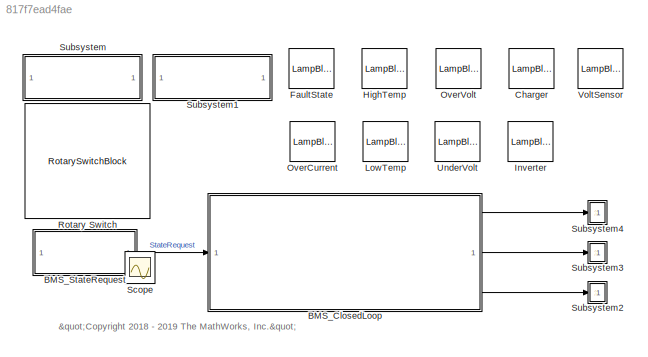
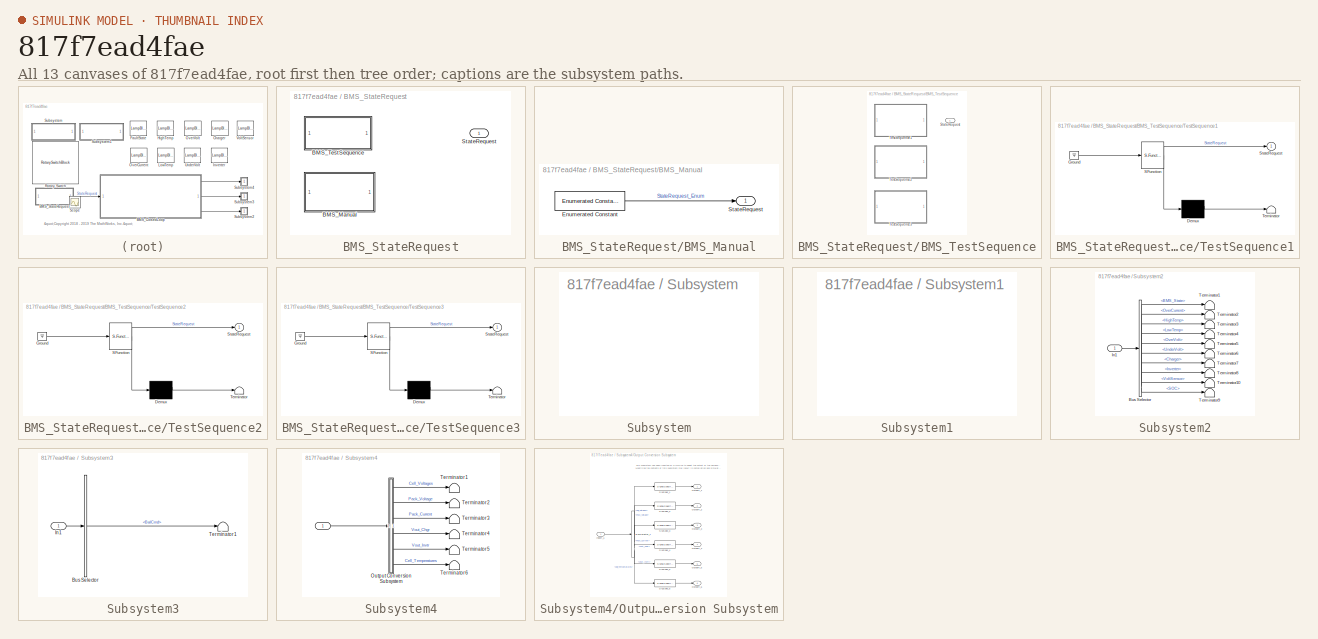
[diagram: thumbnail index - all 13 canvases of the model, root first then tree order]
MODEL slx_817f7ead4fae
KIND model
BLOCK [ModelReference] BMS_ClosedLoop
  ModelNameDialog = BMS_ClosedLoop
  ModelReferenceVersion = 4.1
BLOCK [SubSystem] BMS_StateRequest
  LabelModeActiveChoice = TestSequenceVariant
  Variant = on
  VariantControlMode = label
BLOCK [SubSystem] BMS_StateRequest/BMS_Manual
  VariantControl = ManualVariant
BLOCK [Reference] BMS_StateRequest/BMS_Manual/Enumerated Constant  REF=simulink/Sources/Enumerated
Constant
  SourceBlock = simulink/Sources/Enumerated\nConstant
  SourceType = Enumerated Constant
BLOCK [Outport] BMS_StateRequest/BMS_Manual/StateRequest
  VectorParamsAs1DForOutWhenUnconnected = off
BLOCK [SubSystem] BMS_StateRequest/BMS_TestSequence
  Variant = on
  VariantControl = TestSequenceVariant
BLOCK [Outport] BMS_StateRequest/BMS_TestSequence/ StateRequest
  VectorParamsAs1DForOutWhenUnconnected = off
BLOCK [SubSystem] BMS_StateRequest/BMS_TestSequence/TestSequence1
  ErrorFcn = Stateflow.Translate.translate
  PermitHierarchicalResolution = ExplicitOnly
  SFBlockType = Test Sequence
  TreatAsAtomicUnit = on
  VariantControl = TestCase == 1
BLOCK [Demux] BMS_StateRequest/BMS_TestSequence/TestSequence1/ Demux 
  Outputs = 1
BLOCK [Ground] BMS_StateRequest/BMS_TestSequence/TestSequence1/ Ground 
BLOCK [S-Function] BMS_StateRequest/BMS_TestSequence/TestSequence1/ SFunction 
  EnableBusSupport = off
  FunctionName = sf_sfun
  PortCounts = [1 2]
  SFcnIsStateOwnerBlock = off
  SFunctionDeploymentMode = off
  Tag = Stateflow S-Function 2
BLOCK [Terminator] BMS_StateRequest/BMS_TestSequence/TestSequence1/ Terminator 
BLOCK [Outport] BMS_StateRequest/BMS_TestSequence/TestSequence1/StateRequest
  VectorParamsAs1DForOutWhenUnconnected = off
BLOCK [SubSystem] BMS_StateRequest/BMS_TestSequence/TestSequence2
  ErrorFcn = Stateflow.Translate.translate
  PermitHierarchicalResolution = ExplicitOnly
  SFBlockType = Test Sequence
  TreatAsAtomicUnit = on
  VariantControl = TestCase == 2
BLOCK [Demux] BMS_StateRequest/BMS_TestSequence/TestSequence2/ Demux 
  Outputs = 1
BLOCK [Ground] BMS_StateRequest/BMS_TestSequence/TestSequence2/ Ground 
BLOCK [S-Function] BMS_StateRequest/BMS_TestSequence/TestSequence2/ SFunction 
  EnableBusSupport = off
  FunctionName = sf_sfun
  PortCounts = [1 2]
  SFcnIsStateOwnerBlock = off
  SFunctionDeploymentMode = off
  Tag = Stateflow S-Function 3
BLOCK [Terminator] BMS_StateRequest/BMS_TestSequence/TestSequence2/ Terminator 
BLOCK [Outport] BMS_StateRequest/BMS_TestSequence/TestSequence2/StateRequest
  VectorParamsAs1DForOutWhenUnconnected = off
BLOCK [SubSystem] BMS_StateRequest/BMS_TestSequence/TestSequence3
  ErrorFcn = Stateflow.Translate.translate
  PermitHierarchicalResolution = ExplicitOnly
  SFBlockType = Test Sequence
  TreatAsAtomicUnit = on
  VariantControl = TestCase == 3
BLOCK [Demux] BMS_StateRequest/BMS_TestSequence/TestSequence3/ Demux 
  Outputs = 1
BLOCK [Ground] BMS_StateRequest/BMS_TestSequence/TestSequence3/ Ground 
BLOCK [S-Function] BMS_StateRequest/BMS_TestSequence/TestSequence3/ SFunction 
  EnableBusSupport = off
  FunctionName = sf_sfun
  PortCounts = [1 2]
  SFcnIsStateOwnerBlock = off
  SFunctionDeploymentMode = off
  Tag = Stateflow S-Function 4
BLOCK [Terminator] BMS_StateRequest/BMS_TestSequence/TestSequence3/ Terminator 
BLOCK [Outport] BMS_StateRequest/BMS_TestSequence/TestSequence3/StateRequest
  VectorParamsAs1DForOutWhenUnconnected = off
BLOCK [Outport] BMS_StateRequest/StateRequest
  OutDataTypeStr = Enum: SRE
  VectorParamsAs1DForOutWhenUnconnected = off
BLOCK [LampBlock] Charger
BLOCK [LampBlock] FaultState
BLOCK [LampBlock] HighTemp
BLOCK [LampBlock] Inverter
BLOCK [LampBlock] LowTemp
BLOCK [LampBlock] OverCurrent
BLOCK [LampBlock] OverVolt
BLOCK [RotarySwitchBlock] Rotary Switch
  LabelPosition = Hide
BLOCK [Scope] Scope
  Floating = off
  IOType = viewer
  NumInputPorts = 1
  ScopeSpecificationString = Simulink.scopes.TimeScopeBlockCfg('CurrentConfiguration', extmgr.ConfigurationSet(extmgr.Configuration('Core','General UI',true),extmgr.Configuration('Core','Source UI',true),extmgr.Configuration('Sources','WiredSimulink',true),extmgr.Configuration('Visuals','Time Domain',true,'SerializedDisplays',{struct('MinYLimReal','3.78915','MaxYLimReal','4.25332','YLabelReal','','MinYLimMag','3.78915','MaxYL...<+5038ch>
BLOCK [SubSystem] Subsystem
BLOCK [SubSystem] Subsystem1
  OpenFcn = set_param([gcs '/BMS_StateRequest'],'OverrideUsingVariant','ManualVariant');
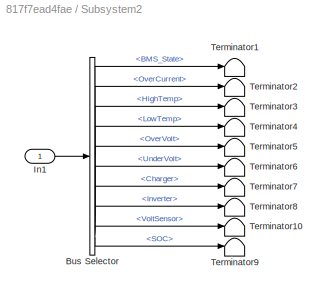
BLOCK [SubSystem] Subsystem2
  ShowPortLabels = none
BLOCK [BusSelector] Subsystem2/Bus Selector
  OutputSignals = BMS_State,Faults.OverCurrent,Faults.HighTemp,Faults.LowTemp,Faults.OverVolt,Faults.UnderVolt,Faults.Charger,Faults.Inverter,Faults.VoltSensor,SOC
BLOCK [Inport] Subsystem2/In1
BLOCK [Terminator] Subsystem2/Terminator1
BLOCK [Terminator] Subsystem2/Terminator10
BLOCK [Terminator] Subsystem2/Terminator2
BLOCK [Terminator] Subsystem2/Terminator3
BLOCK [Terminator] Subsystem2/Terminator4
BLOCK [Terminator] Subsystem2/Terminator5
BLOCK [Terminator] Subsystem2/Terminator6
BLOCK [Terminator] Subsystem2/Terminator7
BLOCK [Terminator] Subsystem2/Terminator8
BLOCK [Terminator] Subsystem2/Terminator9
BLOCK [SubSystem] Subsystem3
  ShowPortLabels = none
BLOCK [BusSelector] Subsystem3/Bus Selector
  OutputSignals = BalCmd
BLOCK [Inport] Subsystem3/In1
BLOCK [Terminator] Subsystem3/Terminator1
BLOCK [SubSystem] Subsystem4
BLOCK [Inport] Subsystem4/ 
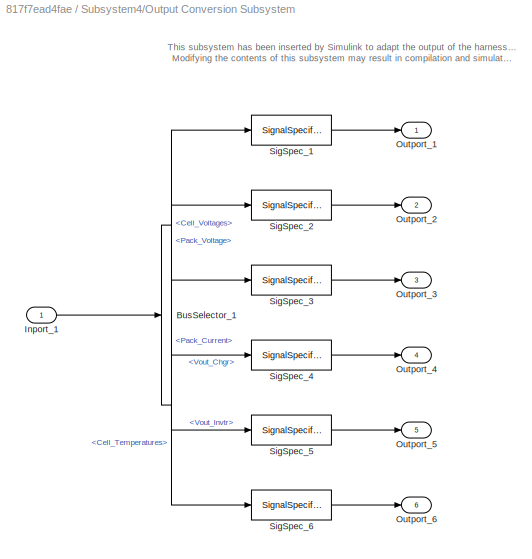
BLOCK [SubSystem] Subsystem4/Output Conversion Subsystem
  AttributesFormatString = %<Description>
  Description = Signal spec.\nand routing
  PermitHierarchicalResolution = ExplicitOnly
  Tag = __SLT_OCS__
  UserDataPersistent = on
BLOCK [BusSelector] Subsystem4/Output Conversion Subsystem/BusSelector_1
  OutputSignals = Cell_Voltages,Pack_Voltage,Pack_Current,Vout_Chgr,Vout_Invtr,Cell_Temperatures
BLOCK [Inport] Subsystem4/Output Conversion Subsystem/Inport_1
BLOCK [Outport] Subsystem4/Output Conversion Subsystem/Outport_1
  VectorParamsAs1DForOutWhenUnconnected = off
BLOCK [Outport] Subsystem4/Output Conversion Subsystem/Outport_2
  Port = 2
  VectorParamsAs1DForOutWhenUnconnected = off
BLOCK [Outport] Subsystem4/Output Conversion Subsystem/Outport_3
  Port = 3
  VectorParamsAs1DForOutWhenUnconnected = off
BLOCK [Outport] Subsystem4/Output Conversion Subsystem/Outport_4
  Port = 4
  VectorParamsAs1DForOutWhenUnconnected = off
BLOCK [Outport] Subsystem4/Output Conversion Subsystem/Outport_5
  Port = 5
  VectorParamsAs1DForOutWhenUnconnected = off
BLOCK [Outport] Subsystem4/Output Conversion Subsystem/Outport_6
  Port = 6
  VectorParamsAs1DForOutWhenUnconnected = off
BLOCK [SignalSpecification] Subsystem4/Output Conversion Subsystem/SigSpec_1
  Dimensions = [Ns_Module*NumModules]
  OutDataTypeStr = single
  SampleTime = 0.1
  SignalType = real
  VarSizeSig = No
BLOCK [SignalSpecification] Subsystem4/Output Conversion Subsystem/SigSpec_2
  Dimensions = [1]
  OutDataTypeStr = single
  SampleTime = 0.1
  SignalType = real
  VarSizeSig = No
BLOCK [SignalSpecification] Subsystem4/Output Conversion Subsystem/SigSpec_3
  Dimensions = [1]
  OutDataTypeStr = single
  SampleTime = 0.1
  SignalType = real
  VarSizeSig = No
BLOCK [SignalSpecification] Subsystem4/Output Conversion Subsystem/SigSpec_4
  Dimensions = [1]
  OutDataTypeStr = single
  SampleTime = 0.1
  SignalType = real
  VarSizeSig = No
BLOCK [SignalSpecification] Subsystem4/Output Conversion Subsystem/SigSpec_5
  Dimensions = [1]
  OutDataTypeStr = single
  SampleTime = 0.1
  SignalType = real
  VarSizeSig = No
BLOCK [SignalSpecification] Subsystem4/Output Conversion Subsystem/SigSpec_6
  Dimensions = [Ns_Module*NumModules]
  OutDataTypeStr = single
  SampleTime = 0.1
  SignalType = real
  VarSizeSig = No
BLOCK [Terminator] Subsystem4/Terminator1
BLOCK [Terminator] Subsystem4/Terminator2
BLOCK [Terminator] Subsystem4/Terminator3
BLOCK [Terminator] Subsystem4/Terminator4
BLOCK [Terminator] Subsystem4/Terminator5
BLOCK [Terminator] Subsystem4/Terminator6
BLOCK [LampBlock] UnderVolt
BLOCK [LampBlock] VoltSensor
ANNOTATION (root): "<copyright redacted>
ANNOTATION Subsystem4/Output Conversion Subsystem: This subsystem has been inserted by Simulink to adapt the output of the harnessed component to the interface required by the sink blocks. Modifying the contents of this subsystem may result in compilation and simulation failure.
LINE BMS_ClosedLoop:1 -> Subsystem4:1
LINE BMS_ClosedLoop:2 -> Subsystem3:1
LINE BMS_ClosedLoop:3 -> Subsystem2:1
LINE BMS_StateRequest/BMS_Manual/Enumerated Constant:1 -> BMS_StateRequest/BMS_Manual/StateRequest:1
LINE BMS_StateRequest:1 -> BMS_ClosedLoop:1
LINE Subsystem2/Bus Selector:1 -> Subsystem2/Terminator1:1
LINE Subsystem2/Bus Selector:10 -> Subsystem2/Terminator9:1
LINE Subsystem2/Bus Selector:2 -> Subsystem2/Terminator2:1
LINE Subsystem2/Bus Selector:3 -> Subsystem2/Terminator3:1
LINE Subsystem2/Bus Selector:4 -> Subsystem2/Terminator4:1
LINE Subsystem2/Bus Selector:5 -> Subsystem2/Terminator5:1
LINE Subsystem2/Bus Selector:6 -> Subsystem2/Terminator6:1
LINE Subsystem2/Bus Selector:7 -> Subsystem2/Terminator7:1
LINE Subsystem2/Bus Selector:8 -> Subsystem2/Terminator8:1
LINE Subsystem2/Bus Selector:9 -> Subsystem2/Terminator10:1
LINE Subsystem2/In1:1 -> Subsystem2/Bus Selector:1
LINE Subsystem3/Bus Selector:1 -> Subsystem3/Terminator1:1
LINE Subsystem3/In1:1 -> Subsystem3/Bus Selector:1
LINE Subsystem4/ :1 -> Subsystem4/Output Conversion Subsystem:1
LINE Subsystem4/Output Conversion Subsystem/BusSelector_1:1 -> Subsystem4/Output Conversion Subsystem/SigSpec_1:1
LINE Subsystem4/Output Conversion Subsystem/BusSelector_1:2 -> Subsystem4/Output Conversion Subsystem/SigSpec_2:1
LINE Subsystem4/Output Conversion Subsystem/BusSelector_1:3 -> Subsystem4/Output Conversion Subsystem/SigSpec_3:1
LINE Subsystem4/Output Conversion Subsystem/BusSelector_1:4 -> Subsystem4/Output Conversion Subsystem/SigSpec_4:1
LINE Subsystem4/Output Conversion Subsystem/BusSelector_1:5 -> Subsystem4/Output Conversion Subsystem/SigSpec_5:1
LINE Subsystem4/Output Conversion Subsystem/BusSelector_1:6 -> Subsystem4/Output Conversion Subsystem/SigSpec_6:1
LINE Subsystem4/Output Conversion Subsystem/Inport_1:1 -> Subsystem4/Output Conversion Subsystem/BusSelector_1:1
LINE Subsystem4/Output Conversion Subsystem/SigSpec_1:1 -> Subsystem4/Output Conversion Subsystem/Outport_1:1
LINE Subsystem4/Output Conversion Subsystem/SigSpec_2:1 -> Subsystem4/Output Conversion Subsystem/Outport_2:1
LINE Subsystem4/Output Conversion Subsystem/SigSpec_3:1 -> Subsystem4/Output Conversion Subsystem/Outport_3:1
LINE Subsystem4/Output Conversion Subsystem/SigSpec_4:1 -> Subsystem4/Output Conversion Subsystem/Outport_4:1
LINE Subsystem4/Output Conversion Subsystem/SigSpec_5:1 -> Subsystem4/Output Conversion Subsystem/Outport_5:1
LINE Subsystem4/Output Conversion Subsystem/SigSpec_6:1 -> Subsystem4/Output Conversion Subsystem/Outport_6:1
LINE Subsystem4/Output Conversion Subsystem:1 -> Subsystem4/Terminator1:1
LINE Subsystem4/Output Conversion Subsystem:2 -> Subsystem4/Terminator2:1
LINE Subsystem4/Output Conversion Subsystem:3 -> Subsystem4/Terminator3:1
LINE Subsystem4/Output Conversion Subsystem:4 -> Subsystem4/Terminator4:1
LINE Subsystem4/Output Conversion Subsystem:5 -> Subsystem4/Terminator5:1
LINE Subsystem4/Output Conversion Subsystem:6 -> Subsystem4/Terminator6:1
CHART BMS_StateRequest/BMS_TestSequence/TestSequence1 states=4 transitions=4
  STATE_LABEL 'Driving\nStateRequest = SRE.Driving;'
  STATE_LABEL 'Balancing\nStateRequest = SRE.Balancing;'
  STATE_LABEL 'ChargingAndBalancing\nStateRequest = SRE.Charging;'
  STATE_LABEL 'PostChargeBalancing\nStateRequest = SRE.Balancing;'
CHART BMS_StateRequest/BMS_TestSequence/TestSequence2 states=2 transitions=2
  STATE_LABEL 'Driving\nStateRequest = SRE.Driving;'
  STATE_LABEL 'Charging\nStateRequest = SRE.Charging;'
CHART BMS_StateRequest/BMS_TestSequence/TestSequence3 states=1 transitions=1
  STATE_LABEL 'Charging\nStateRequest = SRE.Charging;'
